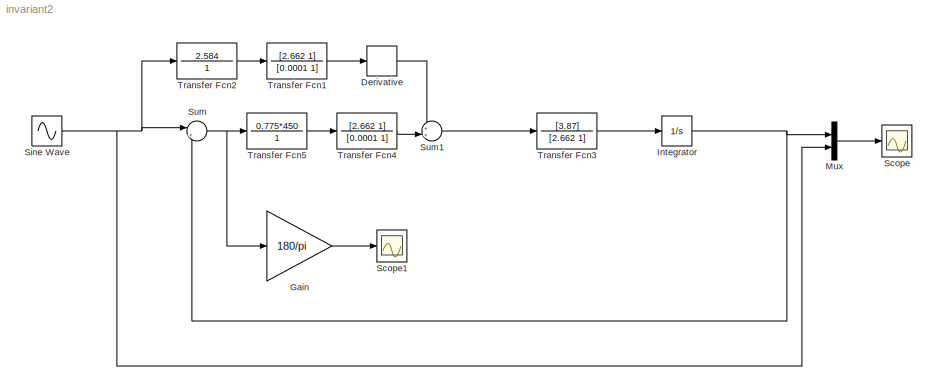
MODEL invariant2
KIND model
BLOCK [Derivative] Derivative
BLOCK [Gain] Gain
  Gain = 180/pi
  OutDataType = fixdt(1, 16)
  OutDataTypeMode = Inherit via internal rule
  OutDataTypeStr = Inherit: Inherit via internal rule
  OutScaling = 2^0
  ParamDataTypeStr = Inherit: Inherit via internal rule
  ParameterDataType = fixdt(1, 16)
  ParameterDataTypeMode = Inherit via internal rule
  ParameterScaling = 2^0
  SaturateOnIntegerOverflow = off
BLOCK [Integrator] Integrator
  Ports = [1, 1]
BLOCK [Mux] Mux
  DisplayOption = bar
  Inputs = 2
  Ports = [2, 1]
BLOCK [Scope] Scope
  DataFormat = StructureWithTime
  Floating = off
  MaxDataPoints = 500000
  NumInputPorts = 1
  Ports = [1]
  SampleTime = 0
  ZoomMode = yonly
BLOCK [Scope] Scope1
  DataFormat = StructureWithTime
  Floating = off
  MaxDataPoints = 500000
  NumInputPorts = 1
  Ports = [1]
  SampleTime = 0
  SaveName = ScopeData1
  ZoomMode = yonly
BLOCK [Sin] Sine Wave
  Amplitude = 1
  Bias = 0
  Frequency = 1
  Offset = 0
  Phase = 0
  Ports = [0, 1]
  SampleTime = 0
  Samples = 10
BLOCK [Sum] Sum
  IconShape = round
  InputSameDT = off
  Inputs = |+-
  OutDataType = fixdt(1, 16)
  OutDataTypeMode = Inherit via internal rule
  OutDataTypeStr = Inherit: Inherit via internal rule
  OutScaling = 2^0
  Ports = [2, 1]
  SaturateOnIntegerOverflow = off
BLOCK [Sum] Sum1
  IconShape = round
  InputSameDT = off
  Inputs = ++|
  OutDataType = fixdt(1, 16)
  OutDataTypeMode = Inherit via internal rule
  OutDataTypeStr = Inherit: Inherit via internal rule
  OutScaling = 2^0
  Ports = [2, 1]
  SaturateOnIntegerOverflow = off
BLOCK [TransferFcn] Transfer Fcn1
  Denominator = [0.0001 1]
  Numerator = [2.662 1]
BLOCK [TransferFcn] Transfer Fcn2
  Denominator = 1
  Numerator = 2.584
BLOCK [TransferFcn] Transfer Fcn3
  Denominator = [2.662 1]
  Numerator = [3.87]
BLOCK [TransferFcn] Transfer Fcn4
  Denominator = [0.0001 1]
  Numerator = [2.662 1]
BLOCK [TransferFcn] Transfer Fcn5
  Denominator = 1
  Numerator = 0.775*450
LINE Derivative:1 -> Sum1:1
LINE Gain:1 -> Scope1:1
NET Integrator:1 -> Mux:1, Sum:2
LINE Mux:1 -> Scope:1
NET Sine Wave:1 -> Mux:2, Sum:1, Transfer Fcn2:1
LINE Sum1:1 -> Transfer Fcn3:1
NET Sum:1 -> Gain:1, Transfer Fcn5:1
LINE Transfer Fcn1:1 -> Derivative:1
LINE Transfer Fcn2:1 -> Transfer Fcn1:1
LINE Transfer Fcn3:1 -> Integrator:1
LINE Transfer Fcn4:1 -> Sum1:2
LINE Transfer Fcn5:1 -> Transfer Fcn4:1
note: NET lines group one-source signal fan-out (src -> all destinations, sorted); 1:1 wires keep LINE
